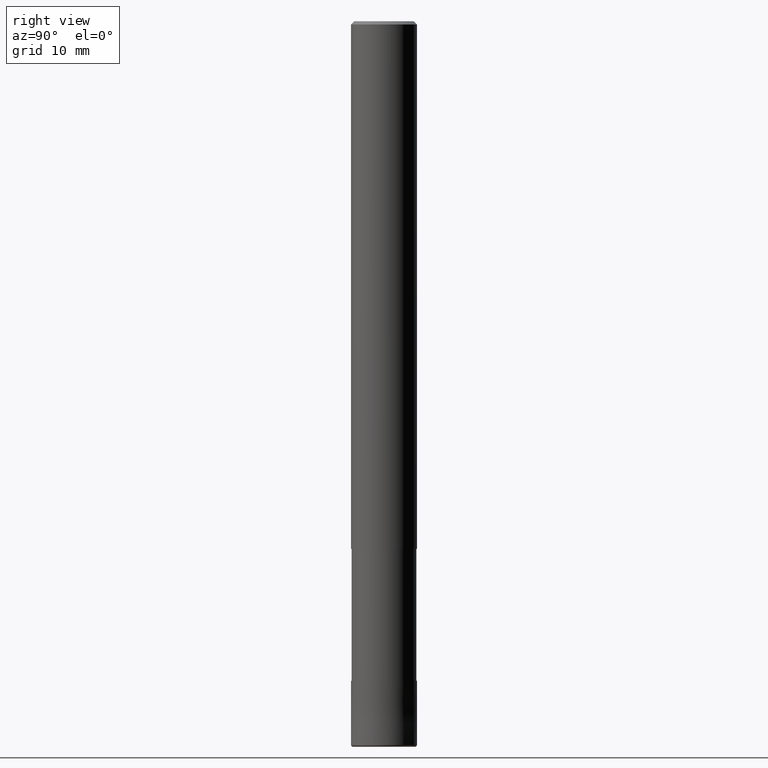
[diagram: clean part render]
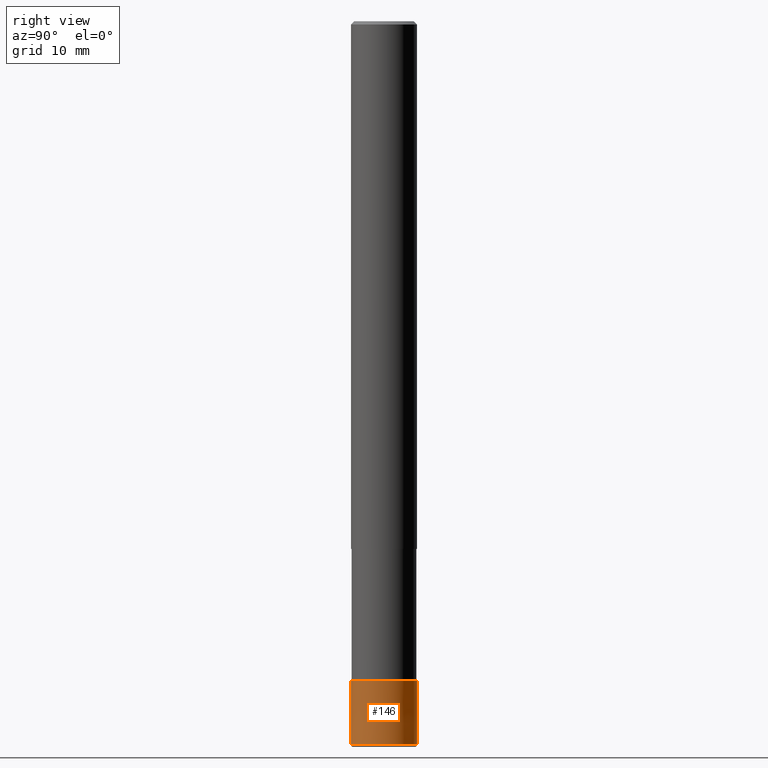
[diagram: same view with one face highlighted and labeled with its STEP entity id]
A machine part, right view. The second image highlights one B-rep face of the part: STEP entity #146.
In plain terms, the highlighted conical surface has half-angle 0.001 deg.
Its self-contained STEP definition (entity closure, byte-faithful):
#98=VERTEX_POINT('',#235);
#102=EDGE_CURVE('',#98,#118,#239,.T.);
#118=VERTEX_POINT('',#258);
#122=EDGE_CURVE('',#158,#118,#262,.T.);
#142=VERTEX_POINT('',#283);
#146=ADVANCED_FACE('',(#288),#289,.T.);
#158=VERTEX_POINT('',#304);
#162=EDGE_CURVE('',#142,#98,#308,.T.);
#170=EDGE_CURVE('',#158,#142,#316,.T.);
#235=CARTESIAN_POINT('',(6.12303176911189E-016,-5.0,-109.7));
#239=LINE('',#388,#389);
#258=CARTESIAN_POINT('',(6.1229093084765E-016,-4.9999,-100.0));
#262=CIRCLE('',#416,4.9999);
#283=CARTESIAN_POINT('',(0.0,5.0,-109.7));
#288=FACE_OUTER_BOUND('',#448,.T.);
#289=CONICAL_SURFACE('',#449,4.99995,1.03092783501262E-005);
#304=CARTESIAN_POINT('',(0.0,4.9999,-100.0));
#308=CIRCLE('',#472,5.0);
#316=LINE('',#484,#485);
#388=CARTESIAN_POINT('',(6.1229705387942E-016,-4.99995,-104.85));
#389=VECTOR('',#549,1.0);
#416=AXIS2_PLACEMENT_3D('',#576,#577,#578);
#448=EDGE_LOOP('',(#609,#610,#611,#612));
#449=AXIS2_PLACEMENT_3D('',#613,#614,#615);
#472=AXIS2_PLACEMENT_3D('',#642,#643,#644);
#484=CARTESIAN_POINT('',(-6.1229705387942E-016,4.99995,-104.85));
#485=VECTOR('',#649,1.0);
#549=DIRECTION('',(-1.26248077706644E-021,1.03092783499436E-005,0.999999999946859));
#576=CARTESIAN_POINT('',(0.0,0.0,-100.0));
#577=DIRECTION('',(0.0,0.0,-1.0));
#578=DIRECTION('',(0.0,1.0,0.0));
#609=ORIENTED_EDGE('',*,*,#170,.F.);
#610=ORIENTED_EDGE('',*,*,#122,.T.);
#611=ORIENTED_EDGE('',*,*,#102,.F.);
#612=ORIENTED_EDGE('',*,*,#162,.F.);
#613=CARTESIAN_POINT('',(0.0,0.0,-104.85));
#614=DIRECTION('',(0.0,-0.0,-1.0));
#615=DIRECTION('',(0.0,1.0,0.0));
#642=CARTESIAN_POINT('',(0.0,0.0,-109.7));
#643=DIRECTION('',(0.0,0.0,-1.0));
#644=DIRECTION('',(0.0,1.0,0.0));
#649=DIRECTION('',(-1.26248077706644E-021,1.03092783499436E-005,-0.999999999946859));